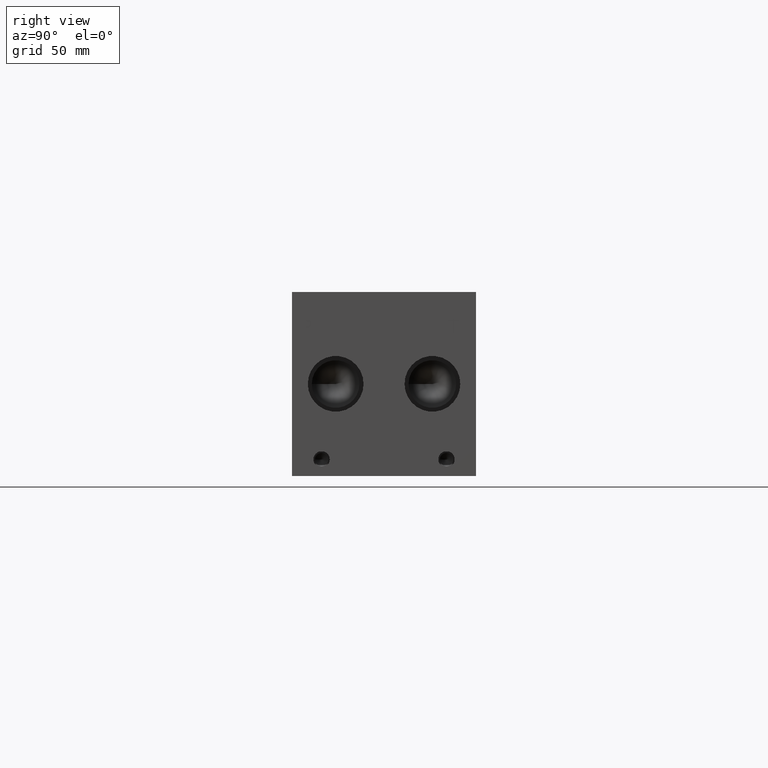
[diagram: clean part render]
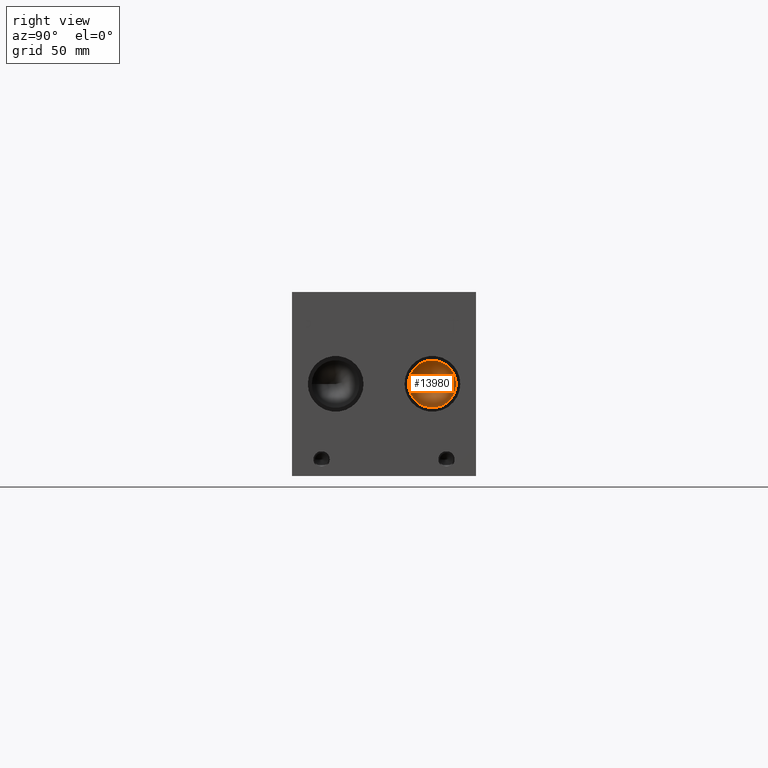
[diagram: same view with one face highlighted and labeled with its STEP entity id]
A machine part, right view. The second image highlights one B-rep face of the part: STEP entity #13980.
In plain terms, the highlighted conical surface has half-angle 60 deg.
Its self-contained STEP definition (entity closure, byte-faithful):
#102=CONICAL_SURFACE('',#14610,5.7531,1.0471975511966);
#383=CIRCLE('',#14611,11.5062);
#384=CIRCLE('',#14612,11.5062);
#1680=FACE_OUTER_BOUND('',#2485,.T.);
#2485=EDGE_LOOP('',(#11703,#11704,#11705,#11706));
#3870=LINE('',#23496,#5165);
#5165=VECTOR('',#17113,5.7531);
#6358=VERTEX_POINT('',#23492);
#6359=VERTEX_POINT('',#23493);
#6360=VERTEX_POINT('',#23495);
#8224=EDGE_CURVE('',#6358,#6359,#383,.T.);
#8225=EDGE_CURVE('',#6359,#6360,#3870,.T.);
#8226=EDGE_CURVE('',#6359,#6358,#384,.T.);
#11703=ORIENTED_EDGE('',*,*,#8224,.T.);
#11704=ORIENTED_EDGE('',*,*,#8225,.T.);
#11705=ORIENTED_EDGE('',*,*,#8225,.F.);
#11706=ORIENTED_EDGE('',*,*,#8226,.T.);
#13980=ADVANCED_FACE('',(#1680),#102,.F.);
#14610=AXIS2_PLACEMENT_3D('',#23491,#17109,#17110);
#14611=AXIS2_PLACEMENT_3D('',#23494,#17111,#17112);
#14612=AXIS2_PLACEMENT_3D('',#23497,#17114,#17115);
#17109=DIRECTION('center_axis',(1.,0.,0.));
#17110=DIRECTION('ref_axis',(0.,1.,0.));
#17111=DIRECTION('center_axis',(1.,0.,0.));
#17112=DIRECTION('ref_axis',(0.,1.,0.));
#17113=DIRECTION('',(-0.5,0.866025403784439,1.06057523872491E-16));
#17114=DIRECTION('center_axis',(1.,0.,0.));
#17115=DIRECTION('ref_axis',(0.,1.,0.));
#23491=CARTESIAN_POINT('Origin',(310.364536166325,67.818,44.45));
#23492=CARTESIAN_POINT('',(313.68609,79.3242,44.45));
#23493=CARTESIAN_POINT('',(313.68609,56.3118,44.45));
#23494=CARTESIAN_POINT('Origin',(313.68609,67.818,44.45));
#23495=CARTESIAN_POINT('',(307.04298233265,67.818,44.45));
#23496=CARTESIAN_POINT('',(310.364536166325,62.0649,44.45));
#23497=CARTESIAN_POINT('Origin',(313.68609,67.818,44.45));